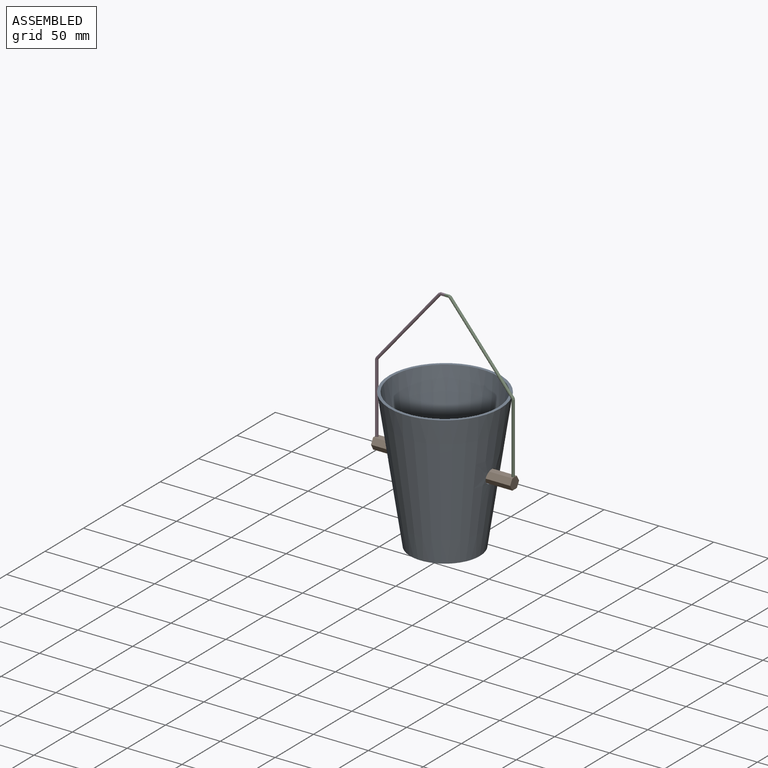
[diagram: assembled view]
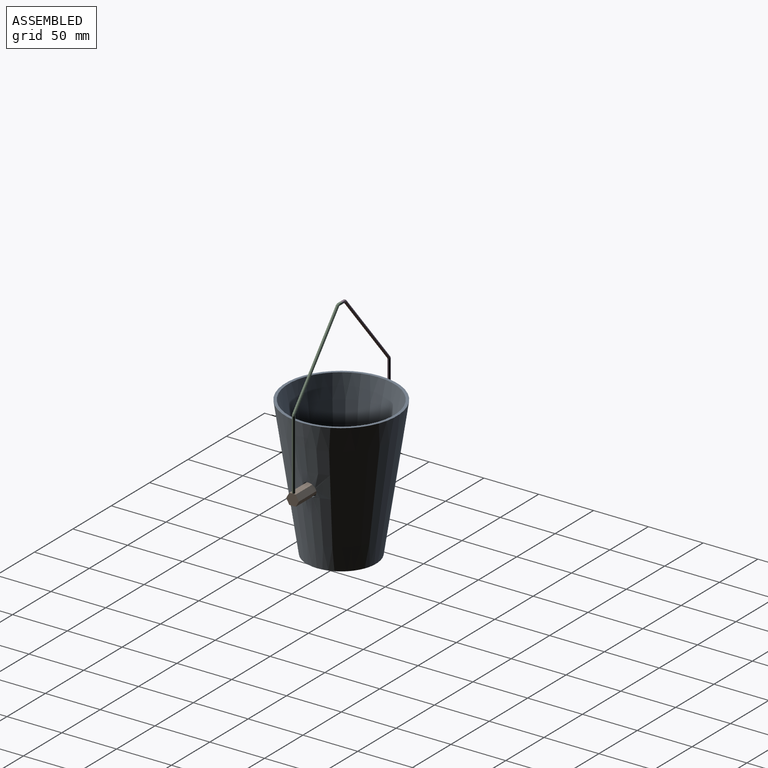
[diagram: assembled view, second angle]
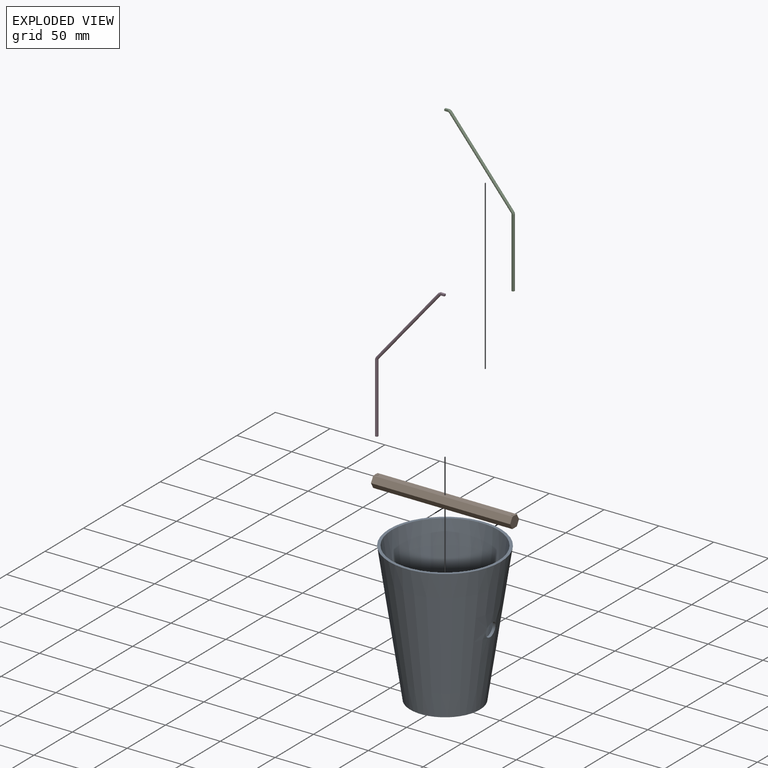
[diagram: exploded view]
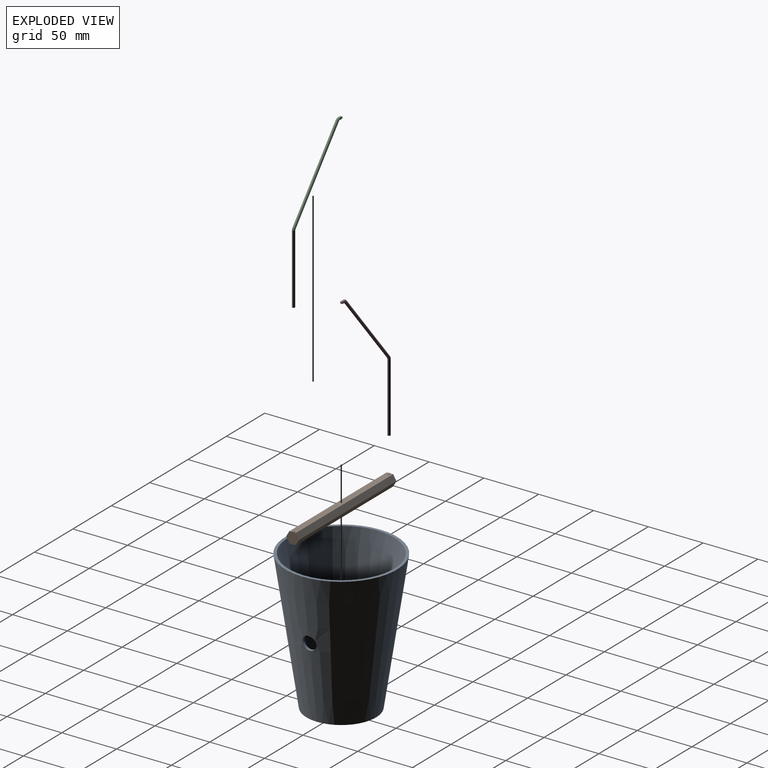
[diagram: exploded view, second angle]
ASSEMBLY  parts=4 mates=2
PART A: 7 faces, bbox 101.6x101.6x127 mm
  f0: plane 101.6x101.6mm, normal (0,0,1), area 790.5mm2, adj f1,f3
  f1: cone r=50.8mm half-angle=8.5deg, axis (0,0,1), area 33047.6mm2, adj f0,f2,f5,f6
  f2: plane 63.5x63.5mm, normal (0,0,-1), area 3166.9mm2, adj f1
  f3: cone r=48.26mm half-angle=8.5deg, axis (0,0,1), area 30547.9mm2, adj f0,f4,f5,f6
  f4: plane 59.32x59.32mm, normal (0,0,1), area 2763.6mm2, adj f3
  f5: cylinder r=6.35mm len=12.7mm, axis (1,0,0), area 100.7mm2, adj f1,f3
  f6: cylinder r=6.35mm len=12.7mm, axis (1,0,0), area 100.7mm2, adj f1,f3
PART B: 12 faces, bbox 127x11.6x10.3 mm
  f0: plane 127x5.04mm, normal (0,0.87,-0.5), area 739mm2, adj f1,f5,f6,f7
  f1: plane 127x5.04mm, normal (0,0.87,0.5), area 739mm2, adj f0,f2,f6,f7
  f2: plane 127x5.82mm, normal (0,0,1), area 728.9mm2, adj f1,f3,f6,f7,f8,f10
  f3: plane 127x5.04mm, normal (0,-0.87,0.5), area 739mm2, adj f2,f4,f6,f7
  f4: plane 127x5.04mm, normal (0,-0.87,-0.5), area 739mm2, adj f3,f5,f6,f7
  f5: plane 127x5.82mm, normal (0,0,-1), area 739mm2, adj f0,f4,f6,f7
  f6: plane 11.64x10.08mm, normal (1,0,0), area 88mm2, adj f0,f1,f2,f3,f4,f5
  f7: plane 11.64x10.08mm, normal (-1,0,0), area 88mm2, adj f0,f1,f2,f3,f4,f5
  f8: cylinder r=1.27mm len=2.54mm, axis (0,0,-1), area 2mm2, adj f2,f9
  f9: plane 2.54x2.54mm, normal (0,0,1), area 5.1mm2, adj f8
  f10: cylinder r=1.27mm len=2.54mm, axis (0,0,-1), area 2mm2, adj f2,f11
  f11: plane 2.54x2.54mm, normal (0,0,1), area 5.1mm2, adj f10
PART C: 14 faces, bbox 63.7x2.5x134.4 mm
  f0: plane 1.68x0.32mm, normal (1,0,0), area 0.4mm2, adj f7,f9
  f1: plane 1.91x0.43mm, normal (1,0,0), area 0.6mm2, adj f7,f12
  f2: plane 1.68x0.32mm, normal (1,0,0), area 0.4mm2, adj f7,f11
  f3: cylinder r=1.27mm len=63.5mm, axis (0,0,-1), area 506.7mm2, adj f4,f5
  f4: plane 2.54x2.54mm, normal (0,0,-1), area 5.1mm2, adj f3
  f5: torus R=1.27mm, axis (0,-1,0), area 7.1mm2, adj f3,f6
  f6: cylinder r=1.27mm len=69.73mm, axis (-0.64,0,-0.77), area 709.4mm2, adj f5,f7
  f7: torus R=1.27mm, axis (0,-1,0), area 8.8mm2, adj f0,f1,f2,f6,f8
  f8: plane 1.91x0.43mm, normal (1,0,0), area 0.6mm2, adj f7,f10
  f9: plane 3.81x1.68mm, normal (0,1,0), area 6.4mm2, adj f0,f10,f12,f13
  f10: plane 3.81x1.91mm, normal (0,0,1), area 7.3mm2, adj f8,f9,f11,f13
  f11: plane 3.81x1.68mm, normal (0,-1,0), area 6.4mm2, adj f2,f10,f12,f13
  f12: plane 3.81x1.91mm, normal (0,0,-1), area 7.3mm2, adj f1,f9,f11,f13
  f13: plane 1.91x1.68mm, normal (1,0,0), area 3.2mm2, adj f9,f10,f11,f12
PART D: same geometry as C
PLACE A at identity fixed
PLACE B at identity fixed
PLACE C rot(axis=(0,0,1),180deg) t=(62.23,0,73.86)mm
PLACE D t=(-62.23,0,73.86)mm
MATE fastened B.f8 <-> D.f3  axis (0,0,1) through (-62.23,0,73.86)mm
MATE fastened C.f3 <-> B.f10  axis (0,0,-1) through (62.23,0,73.86)mm
